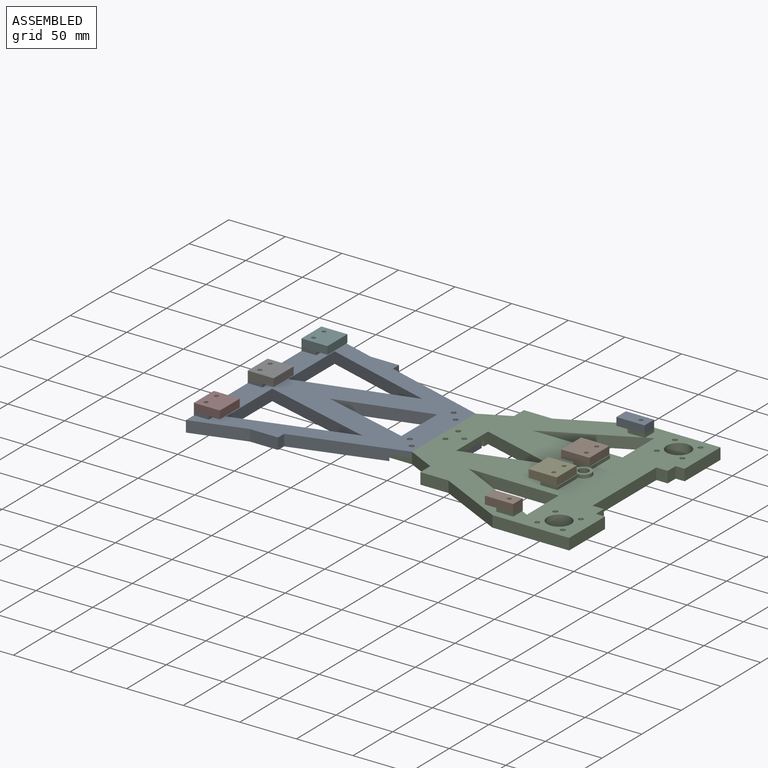
[diagram: assembled view]
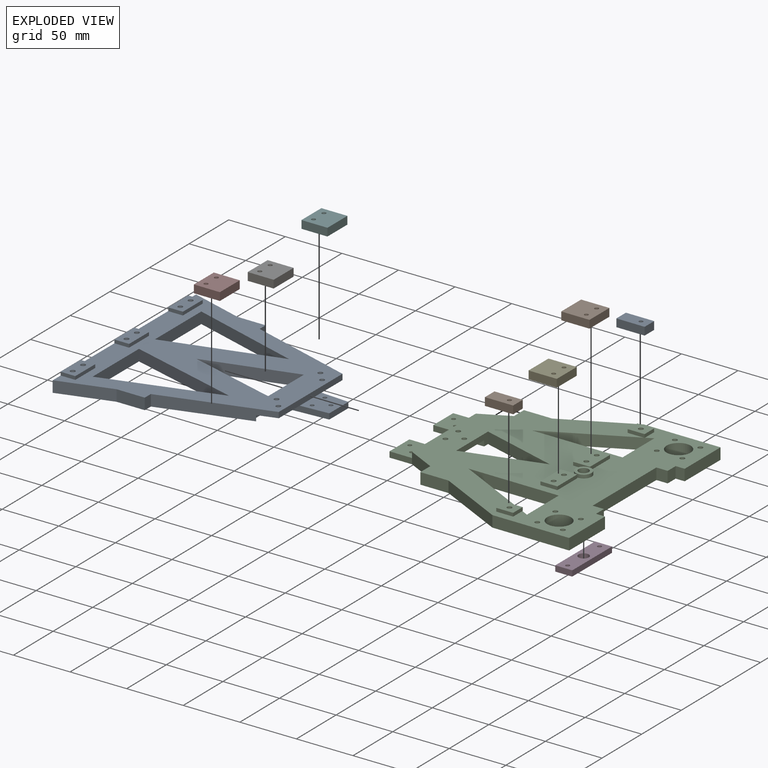
[diagram: exploded view]
GUIDED TOUR — MATED ASSEMBLY (Onshape document fc7a2a4c777dee728e34c6fb, AutoMate assembly fc7a2a4c777dee728e34c6fb_491babcda8c04f3c2a3f2eb8_254b49e5c3aef3035ae6cd4e_default)

This assembly has 10 components, labeled P0..P9 below (a component is one placed occurrence of a part; the same part can appear more than once), held together by 9 mates. A mate is a constraint between two components; its type names the relative motion it leaves free:
  FASTENED — locks the two components together rigidly (no relative motion).
Axis/direction vectors are unit vectors and 'through' points are millimeter coordinates, both in the assembly's world frame.

MATES
  1. FASTENED "Fastened 3": P2 <-> P4, direction (0.000, 0.000, 1.000) through (96.38, 79.76, -47.69) mm
  2. FASTENED "Fastened 9": P3 <-> P2, direction (0.000, 0.000, 1.000) through (103.91, 86.73, -60.69) mm
  3. FASTENED "Fastened 6": P8 <-> P7, direction (0.000, 0.000, 1.000) through (-178.54, 46.81, -47.69) mm
  4. FASTENED "Fastened 2": P9 <-> P2, direction (0.000, 0.000, -1.000) through (96.59, 133.76, -47.69) mm
  5. FASTENED "Fastened 4": P5 <-> P8, direction (0.000, 0.000, -1.000) through (-178.03, 181.81, -47.69) mm
  6. FASTENED "Fastened 7": P2 <-> P0, direction (0.000, 0.000, 1.000) through (96.80, 189.26, -47.69) mm
  7. FASTENED "Fastened 8": P2 <-> P1, direction (0.000, 0.000, 1.000) through (96.17, 24.26, -47.69) mm
  8. FASTENED "Fastened 5": P6 <-> P8, direction (0.000, 0.000, -1.000) through (-178.29, 114.31, -47.69) mm
  9. FASTENED "Fastened 1": P2 <-> P8, direction (-1.000, 0.004, 0.000) through (-19.81, 107.20, -53.19) mm

ASSEMBLY ORDER
  1. P2 — the base component [order heuristic]
  2. P8 — core [order heuristic]
  3. P9 [order verified]
  4. P1 [order verified]
  5. P0 [order verified]
  6. P5 [order verified]
  7. P6 [order verified]
  8. P7 [order verified]
  9. P4 [order verified]
  10. P3 [order verified]
Order-tag legend:
  [order verified] — this step's position reverses a verified removal order: the component was checked to insert without passing through the ones already placed.
  [order heuristic] — the first 2 components form the assembly's core: parts whose collision-free extraction could not be verified, listed in mate-graph order.

Of the 10 components, 10 carry the full construction recipe — the FeatureScript program that regenerates the part's solid from scratch; the rest are supplied as boundary geometry only.
Each toured component is shown spotlighted twice — in the assembled view, then in the exploded view, where a leader line traces a displaced component back to its assembled socket (saturated green if recipe-attached, orange if geometry-only; every other component desaturated gray) — followed by its recipe or geometry summary and the mates that hold it.
NOTE — document 2 of 2 of this assembly tour. The two overview renders and the header above are repeated from document 1; the component sections below continue where the previous document stopped.
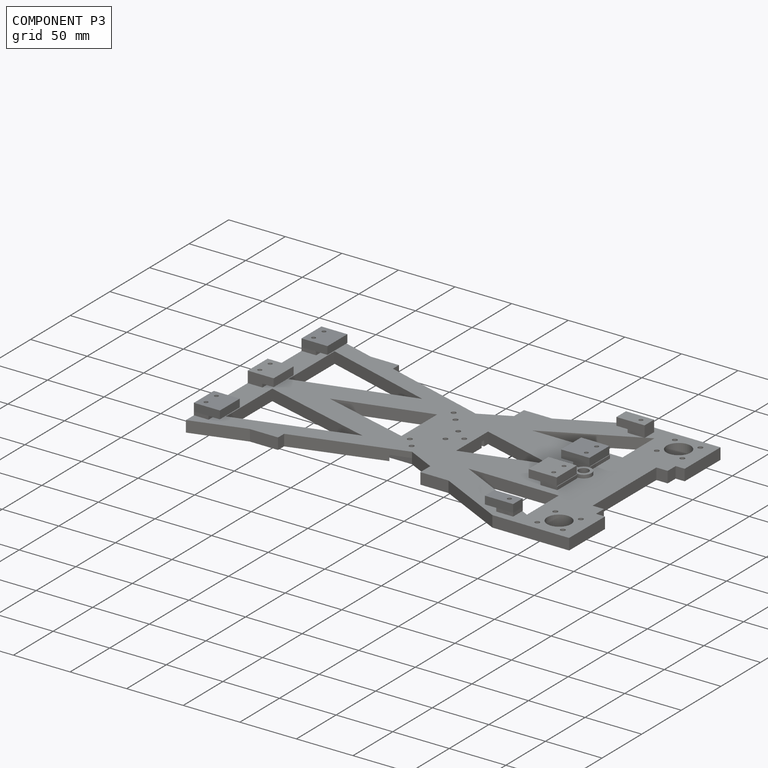
[diagram: component P3 — assembled]
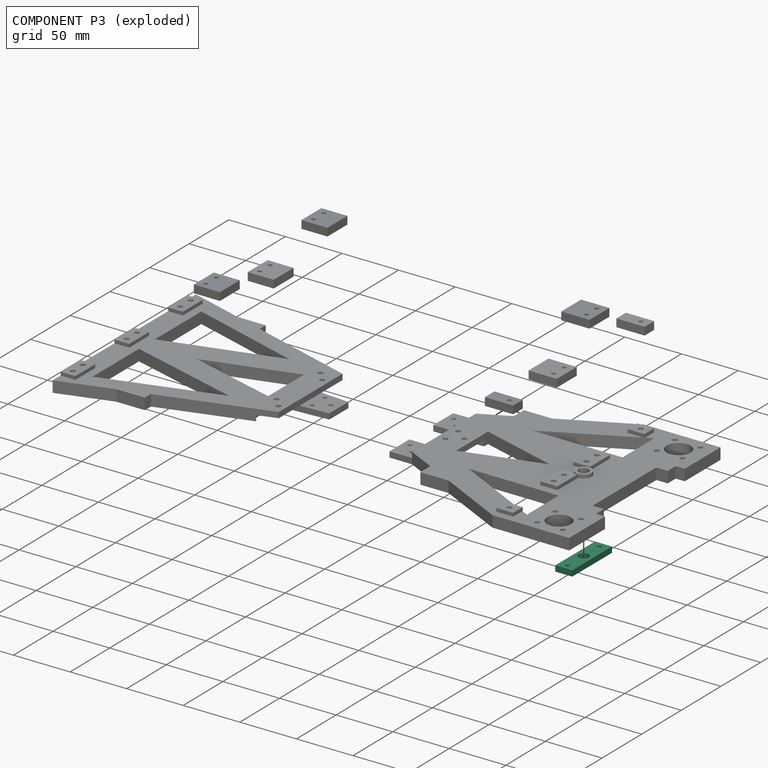
[diagram: component P3 — exploded]
COMPONENT P3 — recipe-attached (CADFS 00824000, mesh-verified: the recipe's output STEP matches this component's geometry to below the mesh-comparison resolution (tessellation chordal tolerance ~0.0787 mm)).
Held by: FASTENED mate "Fastened 9" to P2.
Construction recipe (FeatureScript — the CAD program that rebuilds this solid; sketch coordinates are in the units given by the * unit suffixes, e.g. mm):

FeatureScript 1511;
import(path : "onshape/std/geometry.fs", version : "1511.0");
import(path : "onshape/std/common.fs", version : "1511.0");
const mm = millimeter;
const VERTEX = EntityType.VERTEX;
const EDGE = EntityType.EDGE;
const FACE = EntityType.FACE;
const BODY = EntityType.BODY;
function v(x, y){return vector(x, y);}
function OD(order){return orderDisambiguation(order);}
function OSD(set){return originalSetDisambiguation(set);}
function TD(topology){return topologyDisambiguation(topology);}
function TDD(query){return trueDependencyDisambiguation(query);}
function sQuery(a, b, c) {return sketchEntityQuery(a, b, c);}

annotation { "Feature Type Name" : "Feature", "Feature Type Description" : "" }
export const myFeature = defineFeature(function(context is Context, id is Id, definition is map)
    precondition{}
    {
        {
            var Q0;
            Q0=qCreatedBy(makeId("Top.planeOp"),FACE);
            var sketch = newSketch(context, id + "F0", { "sketchPlane" : qUnion([Q0])});
            skLineSegment(sketch, "E0.bottom", {"start": v(0, 0) * mm, "end": v(50, 0) * mm});
            skLineSegment(sketch, "E0.top", {"start": v(0, 15) * mm, "end": v(50, 15) * mm});
            skLineSegment(sketch, "E0.left", {"start": v(0, 0) * mm, "end": v(0, 15) * mm});
            skLineSegment(sketch, "E0.right", {"start": v(50, 0) * mm, "end": v(50, 15) * mm});
            skCircle(sketch, "E1", {"center": v(25, 7.5) * mm, "radius": 4.5 * mm});
            skPoint(sketch, "E1.centerSnap0", {"position": v(0, 7.5) * mm});
            skPoint(sketch, "E1.centerSnap1", {"position": v(25, 0) * mm});
            skCircle(sketch, "E2", {"center": v(5, 7.5) * mm, "radius": 1.75 * mm});
            skCircle(sketch, "E3", {"center": v(45, 7.5) * mm, "radius": 1.75 * mm});
            skPoint(sketch, "E3.centerSnap0", {"position": v(50, 7.5) * mm});
            skSolve(sketch);
        }
        {
            var Q0;
            Q0 = qSketchRegion(id + "F0", true);
            extrude(context, id + "F1", {"entities" : qUnion([Q0]), "depth" : 5 * mm, "offsetDistance" : 25 * mm});
        }
    });
PROVENANCE & LICENSES
Assembly (occurrences, transforms, mates, per-part STEP geometry): AutoMate dataset, Zenodo record 7776208, CC0.
Construction recipes: CADFS (HuggingFace VladPyatov/CADFS, CC-BY-4.0, layered over the ABC dataset), FeatureScript reconstruction programs keyed by ABC model id.
Join: ABC meta listings map ABC model id -> Onshape documentId; within a shared document, parts are matched by geometric signature (bounding-box dims + volume at 0.1% relative tolerance, exact B-rep face/solid counts).
Verification: 10 of this assembly's 10 components carry a recipe attachment, and every attachment is mesh-verified: the CADFS STEP and the AutoMate member STEP were compared as meshes in their shared local frame (symmetric sampled-point-to-mesh distance); worst across the 10 attachments: below the mesh-comparison resolution (tessellation chordal tolerance ~0.412 mm) on a 275 mm part.
Renders: orthographic iso camera (az 35 / el 25); the floor grid conveys scale (grid pitch printed in each image; no ruler). In the exploded view each component is displaced by its stored offset vector: the offsets alone carry the explosion direction (mate normal/axis signs are not orientation cues and do not encode it), and separation distances are assigned per mate-chain, not proportionally to assembly-order depth.
